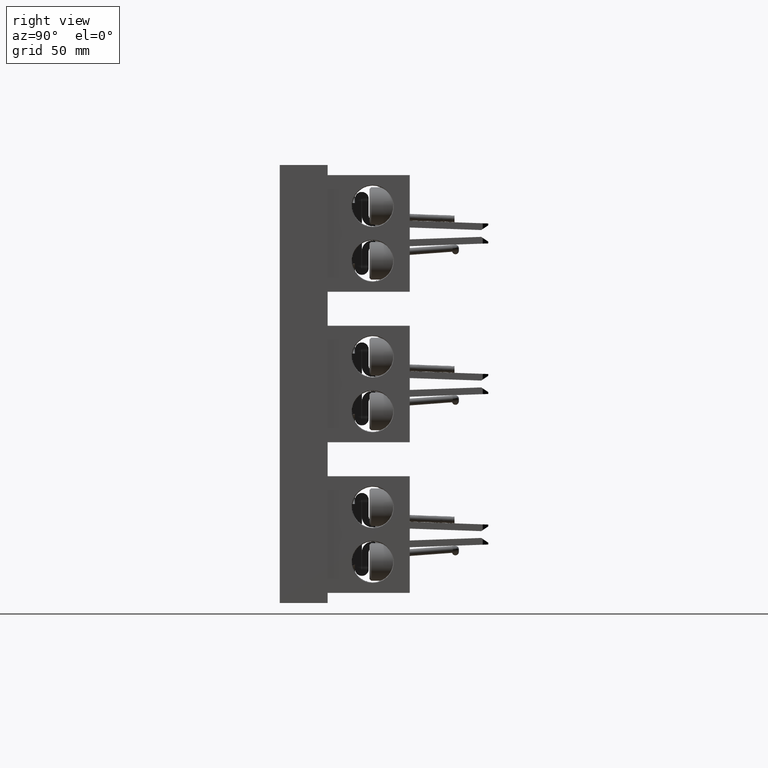
[diagram: clean part render]
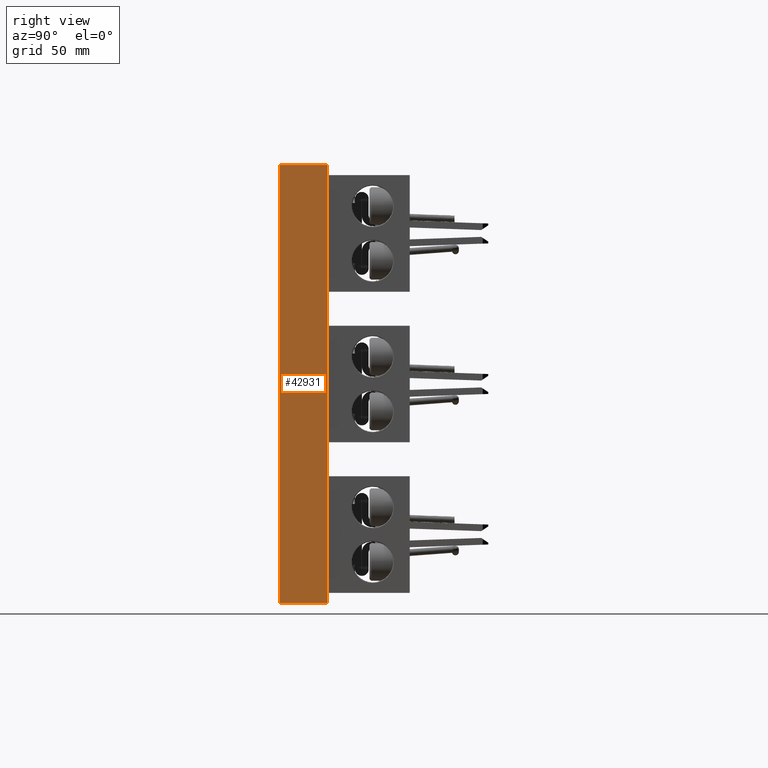
[diagram: same view with one face highlighted and labeled with its STEP entity id]
A machine part, right view. The second image highlights one B-rep face of the part: STEP entity #42931.
In plain terms, the highlighted planar face has unit normal (-1, 0, 0).
Its self-contained STEP definition (entity closure, byte-faithful):
#416 = VECTOR ( 'NONE', #30007, 39.37007874015748100 ) ;
#1887 = DIRECTION ( 'NONE',  ( -1.000000000000000000, 0.0000000000000000000, 0.0000000000000000000 ) ) ;
#5183 = DIRECTION ( 'NONE',  ( 0.0000000000000000000, 0.0000000000000000000, -1.000000000000000000 ) ) ;
#6202 = VERTEX_POINT ( 'NONE', #36574 ) ;
#8894 = CARTESIAN_POINT ( 'NONE',  ( 5.000000000000000000, 0.0000000000000000000, 4.000000000000000000 ) ) ;
#9237 = VERTEX_POINT ( 'NONE', #8894 ) ;
#9538 = EDGE_CURVE ( 'NONE', #30627, #25358, #20589, .T. ) ;
#13127 = LINE ( 'NONE', #30368, #37215 ) ;
#13250 = ORIENTED_EDGE ( 'NONE', *, *, #38749, .T. ) ;
#14072 = ORIENTED_EDGE ( 'NONE', *, *, #9538, .F. ) ;
#16886 = VECTOR ( 'NONE', #36410, 39.37007874015748100 ) ;
#18419 = CARTESIAN_POINT ( 'NONE',  ( 5.000000000000000000, 0.8750000000000000000, -4.000000000000000000 ) ) ;
#19425 = EDGE_CURVE ( 'NONE', #25358, #6202, #13127, .T. ) ;
#19437 = PLANE ( 'NONE',  #27218 ) ;
#20589 = LINE ( 'NONE', #27566, #32395 ) ;
#22335 = ORIENTED_EDGE ( 'NONE', *, *, #23972, .T. ) ;
#23972 = EDGE_CURVE ( 'NONE', #9237, #6202, #31751, .T. ) ;
#25358 = VERTEX_POINT ( 'NONE', #18419 ) ;
#27218 = AXIS2_PLACEMENT_3D ( 'NONE', #33925, #1887, #35494 ) ;
#27566 = CARTESIAN_POINT ( 'NONE',  ( 5.000000000000000000, 0.8750000000000000000, 4.000000000000000000 ) ) ;
#28270 = DIRECTION ( 'NONE',  ( -0.0000000000000000000, -1.000000000000000000, -0.0000000000000000000 ) ) ;
#30007 = DIRECTION ( 'NONE',  ( -0.0000000000000000000, -1.000000000000000000, -0.0000000000000000000 ) ) ;
#30342 = CARTESIAN_POINT ( 'NONE',  ( 5.000000000000000000, 0.8750000000000000000, 4.000000000000000000 ) ) ;
#30368 = CARTESIAN_POINT ( 'NONE',  ( 5.000000000000000000, 0.8750000000000000000, -4.000000000000000000 ) ) ;
#30627 = VERTEX_POINT ( 'NONE', #41549 ) ;
#31751 = LINE ( 'NONE', #37320, #16886 ) ;
#32395 = VECTOR ( 'NONE', #5183, 39.37007874015748100 ) ;
#32916 = FACE_OUTER_BOUND ( 'NONE', #37406, .T. ) ;
#33925 = CARTESIAN_POINT ( 'NONE',  ( 5.000000000000000000, 0.8750000000000000000, 4.000000000000000000 ) ) ;
#35494 = DIRECTION ( 'NONE',  ( 0.0000000000000000000, 0.0000000000000000000, 1.000000000000000000 ) ) ;
#36410 = DIRECTION ( 'NONE',  ( 0.0000000000000000000, 0.0000000000000000000, -1.000000000000000000 ) ) ;
#36574 = CARTESIAN_POINT ( 'NONE',  ( 5.000000000000000000, 0.0000000000000000000, -4.000000000000000000 ) ) ;
#36643 = ORIENTED_EDGE ( 'NONE', *, *, #19425, .F. ) ;
#37215 = VECTOR ( 'NONE', #28270, 39.37007874015748100 ) ;
#37320 = CARTESIAN_POINT ( 'NONE',  ( 5.000000000000000000, 0.0000000000000000000, 4.000000000000000000 ) ) ;
#37406 = EDGE_LOOP ( 'NONE', ( #22335, #36643, #14072, #13250 ) ) ;
#38749 = EDGE_CURVE ( 'NONE', #30627, #9237, #40418, .T. ) ;
#40418 = LINE ( 'NONE', #30342, #416 ) ;
#41549 = CARTESIAN_POINT ( 'NONE',  ( 5.000000000000000000, 0.8750000000000000000, 4.000000000000000000 ) ) ;
#42931 = ADVANCED_FACE ( 'NONE', ( #32916 ), #19437, .F. ) ;